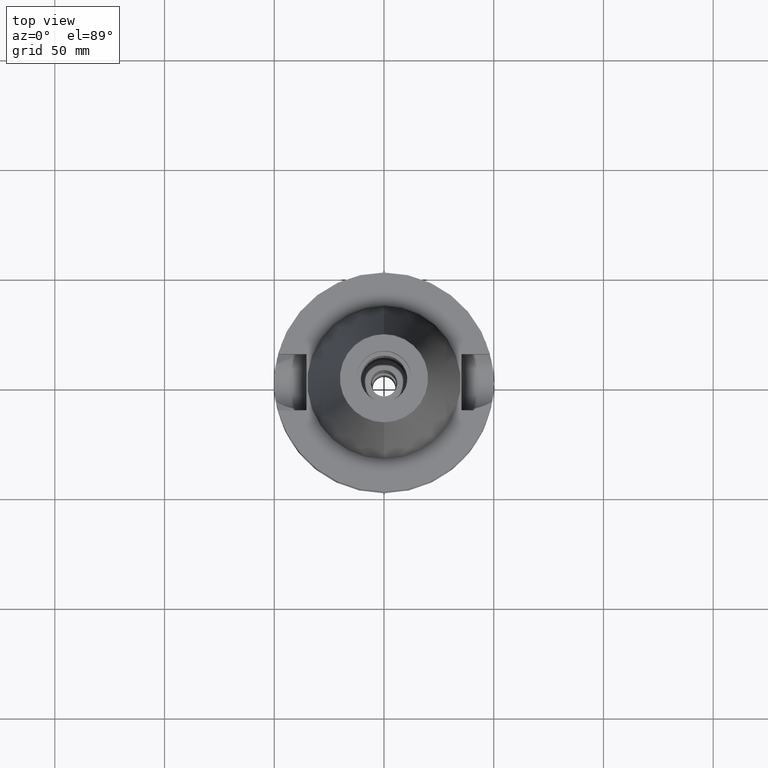
[diagram: clean part render]
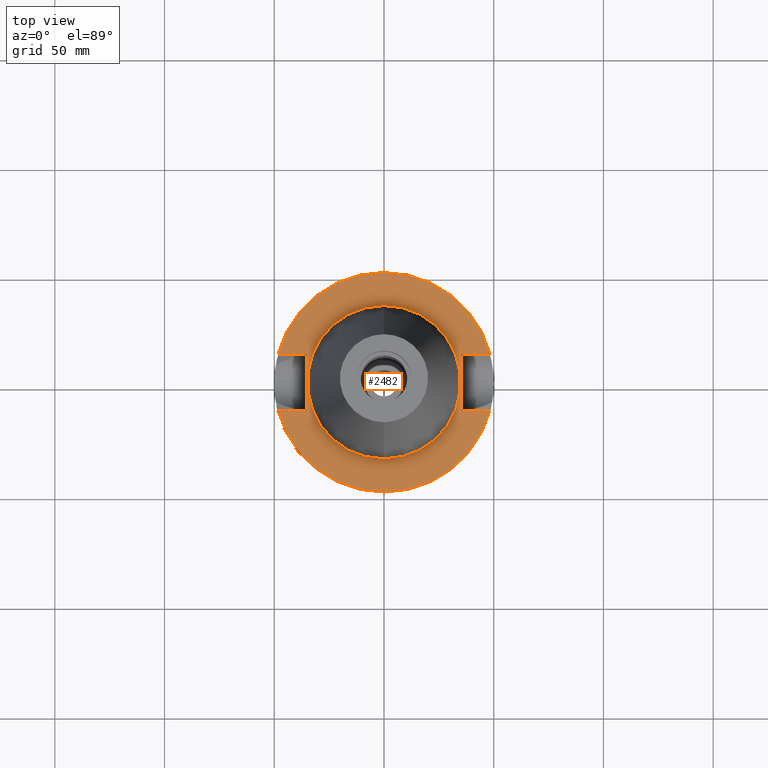
[diagram: same view with one face highlighted and labeled with its STEP entity id]
A machine part, top view. The second image highlights one B-rep face of the part: STEP entity #2482.
In plain terms, the highlighted planar face has unit normal (0, 0, -1).
Its self-contained STEP definition (entity closure, byte-faithful):
#10 = CARTESIAN_POINT ( 'NONE',  ( -35.39999999999999858, -12.84999999999999964, -3.000000000000000000 ) ) ;
#24 = ORIENTED_EDGE ( 'NONE', *, *, #862, .T. ) ;
#32 = EDGE_CURVE ( 'NONE', #959, #93, #2709, .T. ) ;
#38 = VERTEX_POINT ( 'NONE', #2244 ) ;
#60 = CIRCLE ( 'NONE', #2198, 34.92499999999999716 ) ;
#79 = EDGE_CURVE ( 'NONE', #3125, #1140, #589, .T. ) ;
#85 = VERTEX_POINT ( 'NONE', #2177 ) ;
#93 = VERTEX_POINT ( 'NONE', #770 ) ;
#155 = EDGE_CURVE ( 'NONE', #38, #434, #3211, .T. ) ;
#219 = CARTESIAN_POINT ( 'NONE',  ( 35.39999999999999858, 12.84999999999999964, -3.000000000000000000 ) ) ;
#233 = DIRECTION ( 'NONE',  ( 0.0000000000000000000, -1.000000000000000000, 0.0000000000000000000 ) ) ;
#249 = VECTOR ( 'NONE', #339, 1000.000000000000000 ) ;
#270 = LINE ( 'NONE', #2248, #2685 ) ;
#339 = DIRECTION ( 'NONE',  ( -1.000000000000000000, 0.0000000000000000000, 0.0000000000000000000 ) ) ;
#363 = VECTOR ( 'NONE', #1568, 1000.000000000000000 ) ;
#375 = VERTEX_POINT ( 'NONE', #1997 ) ;
#434 = VERTEX_POINT ( 'NONE', #3582 ) ;
#562 = DIRECTION ( 'NONE',  ( 1.000000000000000000, 0.0000000000000000000, 0.0000000000000000000 ) ) ;
#571 = CARTESIAN_POINT ( 'NONE',  ( -35.39999999999999858, -12.84999999999999964, -3.000000000000000000 ) ) ;
#589 = CIRCLE ( 'NONE', #2975, 50.00000000000000000 ) ;
#593 = AXIS2_PLACEMENT_3D ( 'NONE', #3548, #3263, #1839 ) ;
#657 = ORIENTED_EDGE ( 'NONE', *, *, #79, .F. ) ;
#666 = CARTESIAN_POINT ( 'NONE',  ( -48.32057015392000210, -12.84999999999999964, -3.000000000000000000 ) ) ;
#770 = CARTESIAN_POINT ( 'NONE',  ( 35.39999999999999858, -12.84999999999999964, -3.000000000000000000 ) ) ;
#861 = PLANE ( 'NONE',  #1619 ) ;
#862 = EDGE_CURVE ( 'NONE', #3199, #1140, #2823, .T. ) ;
#959 = VERTEX_POINT ( 'NONE', #2841 ) ;
#1056 = DIRECTION ( 'NONE',  ( 0.0000000000000000000, -1.000000000000000000, 0.0000000000000000000 ) ) ;
#1072 = DIRECTION ( 'NONE',  ( 0.0000000000000000000, 0.0000000000000000000, 1.000000000000000000 ) ) ;
#1140 = VERTEX_POINT ( 'NONE', #666 ) ;
#1199 = EDGE_CURVE ( 'NONE', #3633, #85, #2496, .T. ) ;
#1238 = ORIENTED_EDGE ( 'NONE', *, *, #1963, .F. ) ;
#1272 = ORIENTED_EDGE ( 'NONE', *, *, #155, .F. ) ;
#1369 = AXIS2_PLACEMENT_3D ( 'NONE', #1964, #1377, #3361 ) ;
#1377 = DIRECTION ( 'NONE',  ( 0.0000000000000000000, 0.0000000000000000000, -1.000000000000000000 ) ) ;
#1401 = DIRECTION ( 'NONE',  ( 0.0000000000000000000, -1.000000000000000000, 0.0000000000000000000 ) ) ;
#1403 = DIRECTION ( 'NONE',  ( 0.0000000000000000000, 1.000000000000000000, 0.0000000000000000000 ) ) ;
#1423 = EDGE_CURVE ( 'NONE', #375, #38, #2381, .T. ) ;
#1547 = EDGE_CURVE ( 'NONE', #959, #434, #3119, .T. ) ;
#1568 = DIRECTION ( 'NONE',  ( -1.000000000000000000, 0.0000000000000000000, 0.0000000000000000000 ) ) ;
#1619 = AXIS2_PLACEMENT_3D ( 'NONE', #3674, #1952, #1401 ) ;
#1679 = CARTESIAN_POINT ( 'NONE',  ( 0.0000000000000000000, 2.651850178873999682E-14, -3.000000000000000000 ) ) ;
#1704 = ORIENTED_EDGE ( 'NONE', *, *, #1423, .F. ) ;
#1839 = DIRECTION ( 'NONE',  ( 0.0000000000000000000, 1.000000000000000000, 0.0000000000000000000 ) ) ;
#1842 = EDGE_CURVE ( 'NONE', #85, #3633, #60, .T. ) ;
#1848 = VECTOR ( 'NONE', #562, 1000.000000000000000 ) ;
#1906 = ORIENTED_EDGE ( 'NONE', *, *, #2128, .F. ) ;
#1939 = DIRECTION ( 'NONE',  ( 1.000000000000000000, 0.0000000000000000000, 0.0000000000000000000 ) ) ;
#1952 = DIRECTION ( 'NONE',  ( 0.0000000000000000000, 0.0000000000000000000, -1.000000000000000000 ) ) ;
#1963 = EDGE_CURVE ( 'NONE', #3199, #375, #2520, .T. ) ;
#1964 = CARTESIAN_POINT ( 'NONE',  ( 0.0000000000000000000, 2.651850178873999682E-14, -3.000000000000000000 ) ) ;
#1969 = DIRECTION ( 'NONE',  ( 0.0000000000000000000, 0.0000000000000000000, -1.000000000000000000 ) ) ;
#1984 = FACE_OUTER_BOUND ( 'NONE', #3055, .T. ) ;
#1997 = CARTESIAN_POINT ( 'NONE',  ( -35.39999999999999858, 12.84999999999999964, -3.000000000000000000 ) ) ;
#2128 = EDGE_CURVE ( 'NONE', #93, #3125, #270, .T. ) ;
#2177 = CARTESIAN_POINT ( 'NONE',  ( 0.0000000000000000000, -34.92499999999999716, -3.000000000000000000 ) ) ;
#2198 = AXIS2_PLACEMENT_3D ( 'NONE', #3351, #1072, #1056 ) ;
#2244 = CARTESIAN_POINT ( 'NONE',  ( -48.32057015392000210, 12.84999999999999964, -3.000000000000000000 ) ) ;
#2248 = CARTESIAN_POINT ( 'NONE',  ( 35.39999999999999858, -12.84999999999999964, -3.000000000000000000 ) ) ;
#2263 = ORIENTED_EDGE ( 'NONE', *, *, #1199, .F. ) ;
#2381 = LINE ( 'NONE', #2665, #363 ) ;
#2411 = CARTESIAN_POINT ( 'NONE',  ( -35.39999999999999858, -12.84999999999999964, -3.000000000000000000 ) ) ;
#2473 = ORIENTED_EDGE ( 'NONE', *, *, #1547, .T. ) ;
#2482 = ADVANCED_FACE ( 'NONE', ( #1984, #3435 ), #861, .F. ) ;
#2496 = CIRCLE ( 'NONE', #593, 34.92499999999999716 ) ;
#2498 = DIRECTION ( 'NONE',  ( 0.0000000000000000000, -1.000000000000000000, 0.0000000000000000000 ) ) ;
#2510 = EDGE_LOOP ( 'NONE', ( #2263, #2541 ) ) ;
#2520 = LINE ( 'NONE', #571, #3525 ) ;
#2541 = ORIENTED_EDGE ( 'NONE', *, *, #1842, .F. ) ;
#2665 = CARTESIAN_POINT ( 'NONE',  ( -35.39999999999999858, 12.84999999999999964, -3.000000000000000000 ) ) ;
#2681 = VECTOR ( 'NONE', #2498, 1000.000000000000000 ) ;
#2685 = VECTOR ( 'NONE', #1939, 1000.000000000000000 ) ;
#2699 = CARTESIAN_POINT ( 'NONE',  ( 48.32057015392000210, -12.84999999999999964, -3.000000000000000000 ) ) ;
#2709 = LINE ( 'NONE', #219, #2681 ) ;
#2823 = LINE ( 'NONE', #10, #249 ) ;
#2841 = CARTESIAN_POINT ( 'NONE',  ( 35.39999999999999858, 12.84999999999999964, -3.000000000000000000 ) ) ;
#2975 = AXIS2_PLACEMENT_3D ( 'NONE', #1679, #1969, #233 ) ;
#3055 = EDGE_LOOP ( 'NONE', ( #24, #657, #1906, #3607, #2473, #1272, #1704, #1238 ) ) ;
#3119 = LINE ( 'NONE', #3443, #1848 ) ;
#3125 = VERTEX_POINT ( 'NONE', #2699 ) ;
#3199 = VERTEX_POINT ( 'NONE', #2411 ) ;
#3211 = CIRCLE ( 'NONE', #1369, 50.00000000000000000 ) ;
#3263 = DIRECTION ( 'NONE',  ( 0.0000000000000000000, 0.0000000000000000000, 1.000000000000000000 ) ) ;
#3290 = CARTESIAN_POINT ( 'NONE',  ( 0.0000000000000000000, 34.92499999999999716, -3.000000000000000000 ) ) ;
#3351 = CARTESIAN_POINT ( 'NONE',  ( 0.0000000000000000000, 2.651850178873999682E-14, -3.000000000000000000 ) ) ;
#3361 = DIRECTION ( 'NONE',  ( 0.0000000000000000000, 1.000000000000000000, 0.0000000000000000000 ) ) ;
#3435 = FACE_BOUND ( 'NONE', #2510, .T. ) ;
#3443 = CARTESIAN_POINT ( 'NONE',  ( 35.39999999999999858, 12.84999999999999964, -3.000000000000000000 ) ) ;
#3525 = VECTOR ( 'NONE', #1403, 1000.000000000000000 ) ;
#3548 = CARTESIAN_POINT ( 'NONE',  ( 0.0000000000000000000, 2.651850178873999682E-14, -3.000000000000000000 ) ) ;
#3582 = CARTESIAN_POINT ( 'NONE',  ( 48.32057015392000210, 12.84999999999999964, -3.000000000000000000 ) ) ;
#3607 = ORIENTED_EDGE ( 'NONE', *, *, #32, .F. ) ;
#3633 = VERTEX_POINT ( 'NONE', #3290 ) ;
#3674 = CARTESIAN_POINT ( 'NONE',  ( 0.0000000000000000000, 1.187907395172999884E-14, -3.000000000000000000 ) ) ;